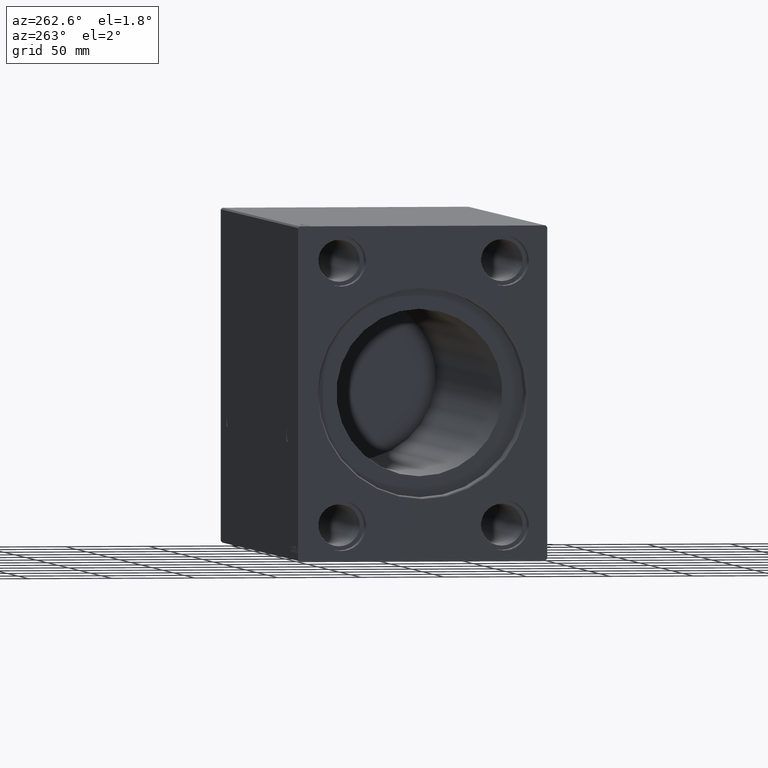
[diagram: clean part render]
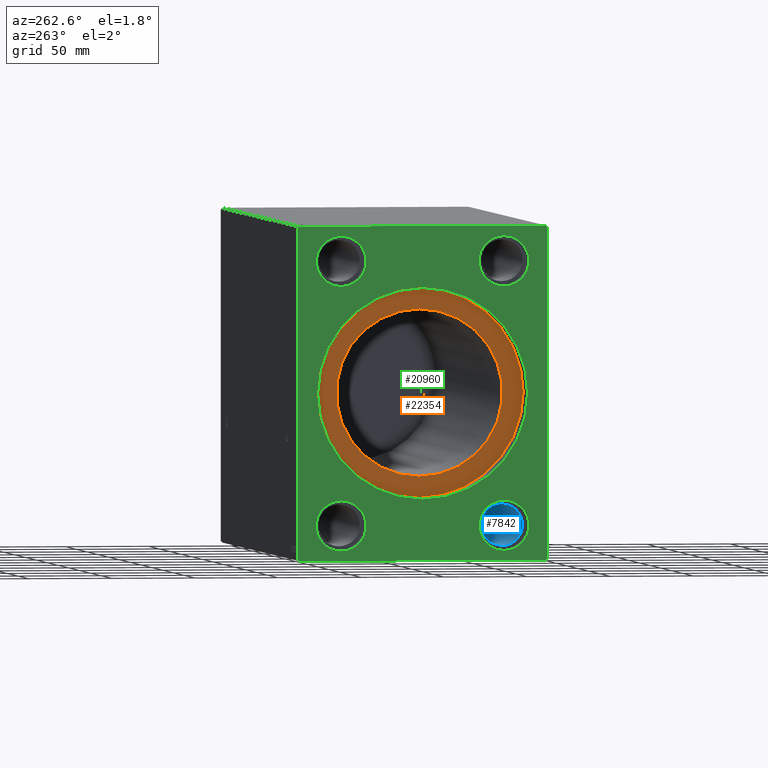
[diagram: same view with three faces highlighted in distinct colors, each labeled with its STEP entity id]
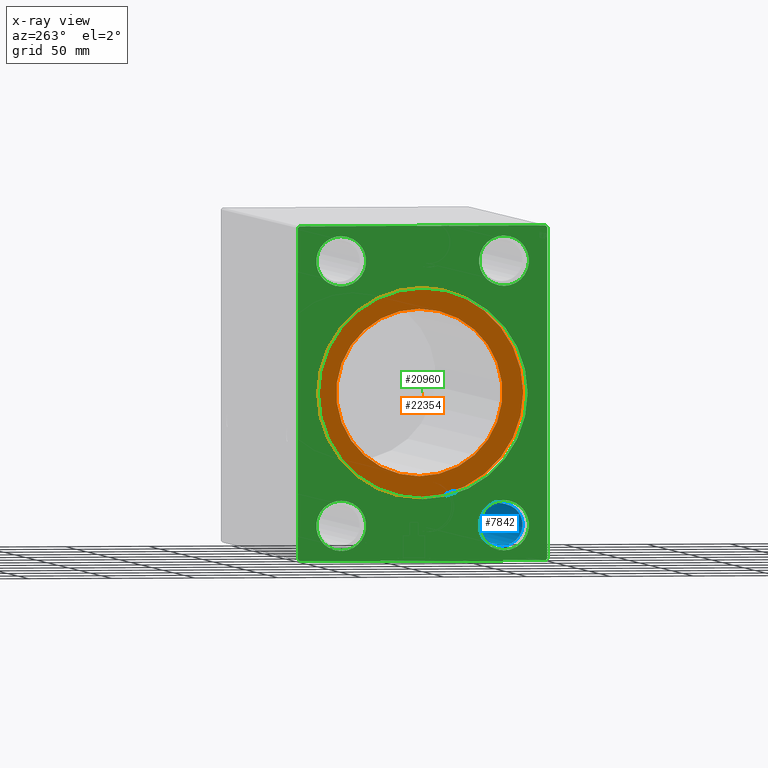
[diagram: x-ray of the same camera — body ghosted, the three highlighted faces saturated]
A machine part, auxiliary view with three faces highlighted in distinct colors.
The next image is the same camera in x-ray (body ghosted, the three faces saturated) — at least one of them is partly hidden behind the body in this view.
Their STEP definitions:

[orange] entity #22354 — the highlighted planar face has unit normal (-1, 0, 0).
#1181 = EDGE_CURVE ( 'NONE', #42337, #15818, #20971, .T. ) ;
#1199 = EDGE_CURVE ( 'NONE', #35679, #38463, #8609, .T. ) ;
#1931 = EDGE_CURVE ( 'NONE', #15818, #42337, #39493, .T. ) ;
#4825 = EDGE_LOOP ( 'NONE', ( #10502, #37688 ) ) ;
#7544 = FACE_BOUND ( 'NONE', #4825, .T. ) ;
#8385 = CIRCLE ( 'NONE', #24752, 50.00000000000000000 ) ;
#8609 = CIRCLE ( 'NONE', #31956, 50.00000000000000000 ) ;
#10474 = CARTESIAN_POINT ( 'NONE',  ( 15.00000000000000000, 7.654042494670957804E-15, -62.50000000000000000 ) ) ;
#10502 = ORIENTED_EDGE ( 'NONE', *, *, #40059, .F. ) ;
#11001 = DIRECTION ( 'NONE',  ( -1.000000000000000000, 0.000000000000000000, 0.000000000000000000 ) ) ;
#12474 = DIRECTION ( 'NONE',  ( 0.000000000000000000, 0.000000000000000000, 1.000000000000000000 ) ) ;
#13146 = CARTESIAN_POINT ( 'NONE',  ( 15.00000000000000000, 0.000000000000000000, 0.000000000000000000 ) ) ;
#14204 = DIRECTION ( 'NONE',  ( -1.000000000000000000, 0.000000000000000000, 0.000000000000000000 ) ) ;
#15818 = VERTEX_POINT ( 'NONE', #10474 ) ;
#15896 = EDGE_LOOP ( 'NONE', ( #16732, #21986 ) ) ;
#16732 = ORIENTED_EDGE ( 'NONE', *, *, #1181, .T. ) ;
#17557 = AXIS2_PLACEMENT_3D ( 'NONE', #41042, #11001, #37202 ) ;
#17656 = CARTESIAN_POINT ( 'NONE',  ( 15.00000000000001421, 0.000000000000000000, 0.000000000000000000 ) ) ;
#20457 = DIRECTION ( 'NONE',  ( 0.000000000000000000, 0.000000000000000000, 1.000000000000000000 ) ) ;
#20971 = CIRCLE ( 'NONE', #17557, 62.50000000000000000 ) ;
#21986 = ORIENTED_EDGE ( 'NONE', *, *, #1931, .T. ) ;
#22351 = AXIS2_PLACEMENT_3D ( 'NONE', #28809, #41256, #12474 ) ;
#22354 = ADVANCED_FACE ( 'NONE', ( #7544, #33750 ), #29478, .T. ) ;
#24752 = AXIS2_PLACEMENT_3D ( 'NONE', #30576, #36009, #20457 ) ;
#25451 = CARTESIAN_POINT ( 'NONE',  ( 15.00000000000001421, 6.123233995736766085E-15, -50.00000000000000000 ) ) ;
#28145 = DIRECTION ( 'NONE',  ( 0.000000000000000000, 0.000000000000000000, 1.000000000000000000 ) ) ;
#28809 = CARTESIAN_POINT ( 'NONE',  ( 15.00000000000000000, 0.000000000000000000, 0.000000000000000000 ) ) ;
#29478 = PLANE ( 'NONE',  #38457 ) ;
#30576 = CARTESIAN_POINT ( 'NONE',  ( 15.00000000000001421, 0.000000000000000000, 0.000000000000000000 ) ) ;
#30977 = DIRECTION ( 'NONE',  ( -1.000000000000000000, 0.000000000000000000, 0.000000000000000000 ) ) ;
#31956 = AXIS2_PLACEMENT_3D ( 'NONE', #17656, #30977, #37405 ) ;
#33750 = FACE_OUTER_BOUND ( 'NONE', #15896, .T. ) ;
#35679 = VERTEX_POINT ( 'NONE', #25451 ) ;
#36009 = DIRECTION ( 'NONE',  ( -1.000000000000000000, 0.000000000000000000, 0.000000000000000000 ) ) ;
#37202 = DIRECTION ( 'NONE',  ( 0.000000000000000000, 0.000000000000000000, 1.000000000000000000 ) ) ;
#37405 = DIRECTION ( 'NONE',  ( 0.000000000000000000, 0.000000000000000000, 1.000000000000000000 ) ) ;
#37688 = ORIENTED_EDGE ( 'NONE', *, *, #1199, .F. ) ;
#38457 = AXIS2_PLACEMENT_3D ( 'NONE', #13146, #14204, #28145 ) ;
#38463 = VERTEX_POINT ( 'NONE', #40432 ) ;
#39493 = CIRCLE ( 'NONE', #22351, 62.50000000000000000 ) ;
#40059 = EDGE_CURVE ( 'NONE', #38463, #35679, #8385, .T. ) ;
#40432 = CARTESIAN_POINT ( 'NONE',  ( 15.00000000000001421, 0.000000000000000000, 50.00000000000000000 ) ) ;
#41042 = CARTESIAN_POINT ( 'NONE',  ( 15.00000000000000000, 0.000000000000000000, 0.000000000000000000 ) ) ;
#41224 = CARTESIAN_POINT ( 'NONE',  ( 15.00000000000000000, 0.000000000000000000, 62.50000000000000000 ) ) ;
#41256 = DIRECTION ( 'NONE',  ( -1.000000000000000000, 0.000000000000000000, 0.000000000000000000 ) ) ;
#42337 = VERTEX_POINT ( 'NONE', #41224 ) ;

[blue] entity #7842 — the highlighted cylindrical surface (edge-blend (fillet) strip) has radius 12.5 mm, axis along (-1, -0, -0).
#103 = EDGE_CURVE ( 'NONE', #16764, #208, #17981, .T. ) ;
#208 = VERTEX_POINT ( 'NONE', #2937 ) ;
#584 = LINE ( 'NONE', #13270, #9092 ) ;
#857 = DIRECTION ( 'NONE',  ( -1.000000000000000000, 0.000000000000000000, 0.000000000000000000 ) ) ;
#1236 = AXIS2_PLACEMENT_3D ( 'NONE', #3073, #6729, #31486 ) ;
#2653 = ORIENTED_EDGE ( 'NONE', *, *, #32553, .T. ) ;
#2937 = CARTESIAN_POINT ( 'NONE',  ( 10.33000000000000540, -48.99999999999999289, -66.50000000000000000 ) ) ;
#3073 = CARTESIAN_POINT ( 'NONE',  ( 358.0000000000000000, -48.99999999999999289, -79.00000000000001421 ) ) ;
#3714 = CARTESIAN_POINT ( 'NONE',  ( 10.33000000000000540, -48.99999999999999289, -79.00000000000001421 ) ) ;
#5619 = CIRCLE ( 'NONE', #16616, 12.50000000000001066 ) ;
#6400 = CARTESIAN_POINT ( 'NONE',  ( 347.6699999999999591, -48.99999999999999289, -91.50000000000002842 ) ) ;
#6614 = DIRECTION ( 'NONE',  ( -1.000000000000000000, -0.000000000000000000, -0.000000000000000000 ) ) ;
#6729 = DIRECTION ( 'NONE',  ( -1.000000000000000000, -0.000000000000000000, -0.000000000000000000 ) ) ;
#7304 = DIRECTION ( 'NONE',  ( 0.000000000000000000, 0.000000000000000000, 1.000000000000000000 ) ) ;
#7842 = ADVANCED_FACE ( 'NONE', ( #9945 ), #36146, .F. ) ;
#9092 = VECTOR ( 'NONE', #6614, 1000.000000000000000 ) ;
#9945 = FACE_OUTER_BOUND ( 'NONE', #26505, .T. ) ;
#13270 = CARTESIAN_POINT ( 'NONE',  ( 358.0000000000000000, -48.99999999999999289, -91.50000000000002842 ) ) ;
#13773 = VECTOR ( 'NONE', #24641, 1000.000000000000000 ) ;
#14892 = CARTESIAN_POINT ( 'NONE',  ( 10.33000000000000540, -48.99999999999999289, -91.50000000000002842 ) ) ;
#16616 = AXIS2_PLACEMENT_3D ( 'NONE', #3714, #32931, #16807 ) ;
#16764 = VERTEX_POINT ( 'NONE', #29458 ) ;
#16807 = DIRECTION ( 'NONE',  ( 0.000000000000000000, 0.000000000000000000, -1.000000000000000000 ) ) ;
#16994 = VERTEX_POINT ( 'NONE', #14892 ) ;
#17981 = LINE ( 'NONE', #31507, #13773 ) ;
#21490 = EDGE_CURVE ( 'NONE', #26772, #16764, #22034, .T. ) ;
#22034 = CIRCLE ( 'NONE', #37782, 12.50000000000001066 ) ;
#22050 = ORIENTED_EDGE ( 'NONE', *, *, #21490, .F. ) ;
#24641 = DIRECTION ( 'NONE',  ( -1.000000000000000000, -0.000000000000000000, -0.000000000000000000 ) ) ;
#26505 = EDGE_LOOP ( 'NONE', ( #22050, #2653, #29479, #33313 ) ) ;
#26772 = VERTEX_POINT ( 'NONE', #6400 ) ;
#29458 = CARTESIAN_POINT ( 'NONE',  ( 347.6699999999999591, -48.99999999999999289, -66.50000000000000000 ) ) ;
#29479 = ORIENTED_EDGE ( 'NONE', *, *, #38462, .F. ) ;
#31486 = DIRECTION ( 'NONE',  ( 0.000000000000000000, 0.000000000000000000, 1.000000000000000000 ) ) ;
#31507 = CARTESIAN_POINT ( 'NONE',  ( 358.0000000000000000, -48.99999999999999289, -66.50000000000000000 ) ) ;
#32553 = EDGE_CURVE ( 'NONE', #26772, #16994, #584, .T. ) ;
#32931 = DIRECTION ( 'NONE',  ( 1.000000000000000000, -0.000000000000000000, -0.000000000000000000 ) ) ;
#33313 = ORIENTED_EDGE ( 'NONE', *, *, #103, .F. ) ;
#36146 = CYLINDRICAL_SURFACE ( 'NONE', #1236, 12.50000000000001066 ) ;
#36721 = CARTESIAN_POINT ( 'NONE',  ( 347.6699999999999591, -48.99999999999999289, -79.00000000000001421 ) ) ;
#37782 = AXIS2_PLACEMENT_3D ( 'NONE', #36721, #857, #7304 ) ;
#38462 = EDGE_CURVE ( 'NONE', #208, #16994, #5619, .T. ) ;

[green] entity #20960 — the highlighted planar face has unit normal (1, 0, 0).
#127 = CIRCLE ( 'NONE', #9025, 15.00000000000000000 ) ;
#129 = CARTESIAN_POINT ( 'NONE',  ( 0.000000000000000000, 49.00000000000000711, -79.00000000000001421 ) ) ;
#195 = AXIS2_PLACEMENT_3D ( 'NONE', #10990, #41237, #1928 ) ;
#350 = ORIENTED_EDGE ( 'NONE', *, *, #40781, .T. ) ;
#911 = CARTESIAN_POINT ( 'NONE',  ( 0.000000000000000000, 0.000000000000000000, 0.000000000000000000 ) ) ;
#1306 = CARTESIAN_POINT ( 'NONE',  ( 0.000000000000000000, 75.00000000000000000, 98.99999999999995737 ) ) ;
#1698 = DIRECTION ( 'NONE',  ( 0.000000000000000000, 0.7071067811865474617, -0.7071067811865474617 ) ) ;
#1793 = EDGE_CURVE ( 'NONE', #3103, #9205, #31184, .T. ) ;
#1928 = DIRECTION ( 'NONE',  ( 0.000000000000000000, 0.000000000000000000, -1.000000000000000000 ) ) ;
#2063 = EDGE_LOOP ( 'NONE', ( #11071, #31188, #39490, #35959, #34517, #18231, #5089, #40398 ) ) ;
#2514 = EDGE_CURVE ( 'NONE', #25213, #22795, #13441, .T. ) ;
#3103 = VERTEX_POINT ( 'NONE', #39684 ) ;
#3170 = DIRECTION ( 'NONE',  ( 0.000000000000000000, 0.000000000000000000, 1.000000000000000000 ) ) ;
#3399 = ORIENTED_EDGE ( 'NONE', *, *, #19967, .F. ) ;
#3757 = PLANE ( 'NONE',  #13093 ) ;
#3771 = CARTESIAN_POINT ( 'NONE',  ( 0.000000000000000000, -75.00000000000000000, 98.99999999999994316 ) ) ;
#3916 = DIRECTION ( 'NONE',  ( 0.000000000000000000, 0.000000000000000000, -1.000000000000000000 ) ) ;
#4112 = VERTEX_POINT ( 'NONE', #28821 ) ;
#4833 = VERTEX_POINT ( 'NONE', #38150 ) ;
#4996 = ORIENTED_EDGE ( 'NONE', *, *, #9999, .F. ) ;
#5089 = ORIENTED_EDGE ( 'NONE', *, *, #33923, .F. ) ;
#5105 = CARTESIAN_POINT ( 'NONE',  ( 0.000000000000000000, 49.00000000000000711, -64.00000000000001421 ) ) ;
#5278 = EDGE_CURVE ( 'NONE', #20306, #23687, #33963, .T. ) ;
#5736 = CARTESIAN_POINT ( 'NONE',  ( 0.000000000000000000, 49.00000000000000711, 64.00000000000001421 ) ) ;
#6179 = CARTESIAN_POINT ( 'NONE',  ( 0.000000000000000000, 49.00000000000000711, -79.00000000000001421 ) ) ;
#6323 = CIRCLE ( 'NONE', #17295, 63.20000000000003126 ) ;
#6567 = DIRECTION ( 'NONE',  ( 1.000000000000000000, -0.000000000000000000, -0.000000000000000000 ) ) ;
#6670 = LINE ( 'NONE', #7299, #30766 ) ;
#6988 = FACE_BOUND ( 'NONE', #29531, .T. ) ;
#7299 = CARTESIAN_POINT ( 'NONE',  ( 0.000000000000000000, 74.00000000000000000, 99.99999999999995737 ) ) ;
#7639 = ORIENTED_EDGE ( 'NONE', *, *, #26393, .T. ) ;
#7784 = DIRECTION ( 'NONE',  ( 0.000000000000000000, 1.000000000000000000, 0.000000000000000000 ) ) ;
#8256 = DIRECTION ( 'NONE',  ( 1.000000000000000000, -0.000000000000000000, -0.000000000000000000 ) ) ;
#8845 = CARTESIAN_POINT ( 'NONE',  ( 0.000000000000000000, 0.000000000000000000, 0.000000000000000000 ) ) ;
#8969 = EDGE_CURVE ( 'NONE', #9205, #20306, #13176, .T. ) ;
#9025 = AXIS2_PLACEMENT_3D ( 'NONE', #37092, #27230, #34091 ) ;
#9159 = VERTEX_POINT ( 'NONE', #5105 ) ;
#9205 = VERTEX_POINT ( 'NONE', #41183 ) ;
#9563 = FACE_BOUND ( 'NONE', #31462, .T. ) ;
#9782 = CARTESIAN_POINT ( 'NONE',  ( 0.000000000000000000, -48.99999999999999289, -79.00000000000001421 ) ) ;
#9840 = AXIS2_PLACEMENT_3D ( 'NONE', #24019, #39912, #20571 ) ;
#9953 = DIRECTION ( 'NONE',  ( 0.000000000000000000, -7.008983741320432232E-17, 1.000000000000000000 ) ) ;
#9999 = EDGE_CURVE ( 'NONE', #28505, #4833, #15668, .T. ) ;
#10341 = ORIENTED_EDGE ( 'NONE', *, *, #25523, .T. ) ;
#10458 = CIRCLE ( 'NONE', #195, 15.00000000000000000 ) ;
#10729 = DIRECTION ( 'NONE',  ( 0.000000000000000000, -1.000000000000000000, -9.376883653928687363E-17 ) ) ;
#10990 = CARTESIAN_POINT ( 'NONE',  ( 0.000000000000000000, 49.00000000000000711, 79.00000000000001421 ) ) ;
#11071 = ORIENTED_EDGE ( 'NONE', *, *, #5278, .F. ) ;
#12065 = EDGE_CURVE ( 'NONE', #25929, #19826, #41081, .T. ) ;
#12532 = VECTOR ( 'NONE', #7784, 1000.000000000000000 ) ;
#12574 = DIRECTION ( 'NONE',  ( 0.000000000000000000, 0.000000000000000000, -1.000000000000000000 ) ) ;
#13093 = AXIS2_PLACEMENT_3D ( 'NONE', #16852, #42006, #12574 ) ;
#13176 = LINE ( 'NONE', #39578, #23184 ) ;
#13226 = DIRECTION ( 'NONE',  ( -1.000000000000000000, 0.000000000000000000, 0.000000000000000000 ) ) ;
#13441 = LINE ( 'NONE', #3771, #21667 ) ;
#13619 = CARTESIAN_POINT ( 'NONE',  ( 0.000000000000000000, -48.99999999999999289, -94.00000000000001421 ) ) ;
#14234 = EDGE_CURVE ( 'NONE', #23687, #28133, #6670, .T. ) ;
#14364 = LINE ( 'NONE', #27473, #24913 ) ;
#15668 = CIRCLE ( 'NONE', #39668, 15.00000000000000000 ) ;
#15804 = DIRECTION ( 'NONE',  ( 0.000000000000000000, 0.000000000000000000, 1.000000000000000000 ) ) ;
#16803 = DIRECTION ( 'NONE',  ( 1.000000000000000000, 0.000000000000000000, 0.000000000000000000 ) ) ;
#16852 = CARTESIAN_POINT ( 'NONE',  ( 0.000000000000000000, 0.000000000000000000, 0.000000000000000000 ) ) ;
#17295 = AXIS2_PLACEMENT_3D ( 'NONE', #8845, #32044, #39125 ) ;
#18020 = CARTESIAN_POINT ( 'NONE',  ( 0.000000000000000000, -74.99999999999997158, -99.00000000000005684 ) ) ;
#18231 = ORIENTED_EDGE ( 'NONE', *, *, #2514, .F. ) ;
#19063 = ORIENTED_EDGE ( 'NONE', *, *, #38162, .F. ) ;
#19826 = VERTEX_POINT ( 'NONE', #20585 ) ;
#19967 = EDGE_CURVE ( 'NONE', #9159, #30672, #41197, .T. ) ;
#20063 = FACE_OUTER_BOUND ( 'NONE', #2063, .T. ) ;
#20306 = VERTEX_POINT ( 'NONE', #38270 ) ;
#20571 = DIRECTION ( 'NONE',  ( 0.000000000000000000, 0.000000000000000000, 1.000000000000000000 ) ) ;
#20585 = CARTESIAN_POINT ( 'NONE',  ( 0.000000000000000000, -48.99999999999999289, -64.00000000000001421 ) ) ;
#20663 = DIRECTION ( 'NONE',  ( 0.000000000000000000, 0.7071067811865474617, 0.7071067811865474617 ) ) ;
#20734 = ORIENTED_EDGE ( 'NONE', *, *, #12065, .T. ) ;
#20960 = ADVANCED_FACE ( 'NONE', ( #36407, #6988, #9563, #20063, #25680, #33186 ), #3757, .F. ) ;
#21074 = CARTESIAN_POINT ( 'NONE',  ( 0.000000000000000000, 74.00000000000001421, -100.0000000000000426 ) ) ;
#21319 = EDGE_CURVE ( 'NONE', #4112, #37281, #40570, .T. ) ;
#21553 = VERTEX_POINT ( 'NONE', #37148 ) ;
#21667 = VECTOR ( 'NONE', #29145, 1000.000000000000000 ) ;
#21826 = CARTESIAN_POINT ( 'NONE',  ( 0.000000000000000000, 49.00000000000000711, 94.00000000000001421 ) ) ;
#22795 = VERTEX_POINT ( 'NONE', #32807 ) ;
#23098 = DIRECTION ( 'NONE',  ( 0.000000000000000000, 0.000000000000000000, -1.000000000000000000 ) ) ;
#23137 = DIRECTION ( 'NONE',  ( -1.000000000000000000, 0.000000000000000000, 0.000000000000000000 ) ) ;
#23184 = VECTOR ( 'NONE', #9953, 1000.000000000000000 ) ;
#23268 = EDGE_LOOP ( 'NONE', ( #7639, #350 ) ) ;
#23687 = VERTEX_POINT ( 'NONE', #36869 ) ;
#24019 = CARTESIAN_POINT ( 'NONE',  ( 0.000000000000000000, -48.99999999999999289, 79.00000000000001421 ) ) ;
#24133 = AXIS2_PLACEMENT_3D ( 'NONE', #129, #13226, #15804 ) ;
#24913 = VECTOR ( 'NONE', #33690, 1000.000000000000114 ) ;
#25213 = VERTEX_POINT ( 'NONE', #40920 ) ;
#25523 = EDGE_CURVE ( 'NONE', #37281, #4112, #6323, .T. ) ;
#25680 = FACE_BOUND ( 'NONE', #41428, .T. ) ;
#25793 = VECTOR ( 'NONE', #20663, 1000.000000000000114 ) ;
#25929 = VERTEX_POINT ( 'NONE', #13619 ) ;
#26133 = AXIS2_PLACEMENT_3D ( 'NONE', #6179, #23137, #3170 ) ;
#26187 = CIRCLE ( 'NONE', #24133, 15.00000000000000000 ) ;
#26393 = EDGE_CURVE ( 'NONE', #41700, #40015, #10458, .T. ) ;
#27230 = DIRECTION ( 'NONE',  ( 1.000000000000000000, -0.000000000000000000, -0.000000000000000000 ) ) ;
#27473 = CARTESIAN_POINT ( 'NONE',  ( 0.000000000000000000, -74.00000000000000000, 99.99999999999994316 ) ) ;
#27619 = ORIENTED_EDGE ( 'NONE', *, *, #33085, .F. ) ;
#27733 = EDGE_CURVE ( 'NONE', #21553, #3103, #34397, .T. ) ;
#28133 = VERTEX_POINT ( 'NONE', #38613 ) ;
#28498 = EDGE_LOOP ( 'NONE', ( #4996, #27619 ) ) ;
#28505 = VERTEX_POINT ( 'NONE', #35136 ) ;
#28821 = CARTESIAN_POINT ( 'NONE',  ( 0.000000000000000000, 7.739767770611276825E-15, -63.20000000000003126 ) ) ;
#29002 = DIRECTION ( 'NONE',  ( -1.000000000000000000, 0.000000000000000000, 0.000000000000000000 ) ) ;
#29024 = EDGE_CURVE ( 'NONE', #22795, #21553, #34565, .T. ) ;
#29145 = DIRECTION ( 'NONE',  ( 0.000000000000000000, 1.401796748264086446E-16, -1.000000000000000000 ) ) ;
#29531 = EDGE_LOOP ( 'NONE', ( #3399, #19063 ) ) ;
#30672 = VERTEX_POINT ( 'NONE', #38108 ) ;
#30766 = VECTOR ( 'NONE', #10729, 1000.000000000000000 ) ;
#31037 = DIRECTION ( 'NONE',  ( 0.000000000000000000, 0.000000000000000000, -1.000000000000000000 ) ) ;
#31184 = LINE ( 'NONE', #21074, #25793 ) ;
#31188 = ORIENTED_EDGE ( 'NONE', *, *, #8969, .F. ) ;
#31462 = EDGE_LOOP ( 'NONE', ( #10341, #42027 ) ) ;
#32044 = DIRECTION ( 'NONE',  ( 1.000000000000000000, 0.000000000000000000, 0.000000000000000000 ) ) ;
#32316 = AXIS2_PLACEMENT_3D ( 'NONE', #911, #16803, #3916 ) ;
#32405 = AXIS2_PLACEMENT_3D ( 'NONE', #37669, #8256, #31037 ) ;
#32807 = CARTESIAN_POINT ( 'NONE',  ( 0.000000000000000000, -74.99999999999997158, -99.00000000000005684 ) ) ;
#33085 = EDGE_CURVE ( 'NONE', #4833, #28505, #37931, .T. ) ;
#33186 = FACE_BOUND ( 'NONE', #23268, .T. ) ;
#33690 = DIRECTION ( 'NONE',  ( 0.000000000000000000, -0.7071067811865474617, -0.7071067811865474617 ) ) ;
#33773 = CARTESIAN_POINT ( 'NONE',  ( 0.000000000000000000, -73.99999999999998579, -100.0000000000000426 ) ) ;
#33923 = EDGE_CURVE ( 'NONE', #28133, #25213, #14364, .T. ) ;
#33963 = LINE ( 'NONE', #1306, #38895 ) ;
#34091 = DIRECTION ( 'NONE',  ( 0.000000000000000000, 0.000000000000000000, -1.000000000000000000 ) ) ;
#34226 = AXIS2_PLACEMENT_3D ( 'NONE', #9782, #6567, #23098 ) ;
#34396 = CARTESIAN_POINT ( 'NONE',  ( 0.000000000000000000, 0.000000000000000000, 63.20000000000003126 ) ) ;
#34397 = LINE ( 'NONE', #33773, #12532 ) ;
#34517 = ORIENTED_EDGE ( 'NONE', *, *, #29024, .F. ) ;
#34565 = LINE ( 'NONE', #18020, #39237 ) ;
#35136 = CARTESIAN_POINT ( 'NONE',  ( 0.000000000000000000, -48.99999999999999289, 94.00000000000001421 ) ) ;
#35959 = ORIENTED_EDGE ( 'NONE', *, *, #27733, .F. ) ;
#36407 = FACE_BOUND ( 'NONE', #28498, .T. ) ;
#36496 = DIRECTION ( 'NONE',  ( 0.000000000000000000, 0.000000000000000000, 1.000000000000000000 ) ) ;
#36869 = CARTESIAN_POINT ( 'NONE',  ( 0.000000000000000000, 74.00000000000000000, 99.99999999999995737 ) ) ;
#37092 = CARTESIAN_POINT ( 'NONE',  ( 0.000000000000000000, -48.99999999999999289, -79.00000000000001421 ) ) ;
#37148 = CARTESIAN_POINT ( 'NONE',  ( 0.000000000000000000, -73.99999999999998579, -100.0000000000000426 ) ) ;
#37281 = VERTEX_POINT ( 'NONE', #34396 ) ;
#37669 = CARTESIAN_POINT ( 'NONE',  ( 0.000000000000000000, 49.00000000000000711, 79.00000000000001421 ) ) ;
#37931 = CIRCLE ( 'NONE', #9840, 15.00000000000000000 ) ;
#37998 = DIRECTION ( 'NONE',  ( 0.000000000000000000, -0.7071067811865474617, 0.7071067811865474617 ) ) ;
#38000 = EDGE_CURVE ( 'NONE', #19826, #25929, #127, .T. ) ;
#38108 = CARTESIAN_POINT ( 'NONE',  ( 0.000000000000000000, 49.00000000000000711, -94.00000000000001421 ) ) ;
#38150 = CARTESIAN_POINT ( 'NONE',  ( 0.000000000000000000, -48.99999999999999289, 64.00000000000001421 ) ) ;
#38162 = EDGE_CURVE ( 'NONE', #30672, #9159, #26187, .T. ) ;
#38270 = CARTESIAN_POINT ( 'NONE',  ( 0.000000000000000000, 75.00000000000000000, 98.99999999999995737 ) ) ;
#38613 = CARTESIAN_POINT ( 'NONE',  ( 0.000000000000000000, -74.00000000000000000, 99.99999999999994316 ) ) ;
#38895 = VECTOR ( 'NONE', #37998, 1000.000000000000114 ) ;
#39125 = DIRECTION ( 'NONE',  ( 0.000000000000000000, 0.000000000000000000, -1.000000000000000000 ) ) ;
#39237 = VECTOR ( 'NONE', #1698, 1000.000000000000114 ) ;
#39490 = ORIENTED_EDGE ( 'NONE', *, *, #1793, .F. ) ;
#39578 = CARTESIAN_POINT ( 'NONE',  ( 0.000000000000000000, 75.00000000000001421, -99.00000000000004263 ) ) ;
#39668 = AXIS2_PLACEMENT_3D ( 'NONE', #42100, #29002, #36496 ) ;
#39684 = CARTESIAN_POINT ( 'NONE',  ( 0.000000000000000000, 74.00000000000001421, -100.0000000000000426 ) ) ;
#39912 = DIRECTION ( 'NONE',  ( -1.000000000000000000, 0.000000000000000000, 0.000000000000000000 ) ) ;
#40015 = VERTEX_POINT ( 'NONE', #5736 ) ;
#40233 = ORIENTED_EDGE ( 'NONE', *, *, #38000, .T. ) ;
#40398 = ORIENTED_EDGE ( 'NONE', *, *, #14234, .F. ) ;
#40570 = CIRCLE ( 'NONE', #32316, 63.20000000000003126 ) ;
#40781 = EDGE_CURVE ( 'NONE', #40015, #41700, #41216, .T. ) ;
#40920 = CARTESIAN_POINT ( 'NONE',  ( 0.000000000000000000, -75.00000000000000000, 98.99999999999994316 ) ) ;
#41081 = CIRCLE ( 'NONE', #34226, 15.00000000000000000 ) ;
#41183 = CARTESIAN_POINT ( 'NONE',  ( 0.000000000000000000, 75.00000000000001421, -99.00000000000004263 ) ) ;
#41197 = CIRCLE ( 'NONE', #26133, 15.00000000000000000 ) ;
#41216 = CIRCLE ( 'NONE', #32405, 15.00000000000000000 ) ;
#41237 = DIRECTION ( 'NONE',  ( 1.000000000000000000, -0.000000000000000000, -0.000000000000000000 ) ) ;
#41428 = EDGE_LOOP ( 'NONE', ( #40233, #20734 ) ) ;
#41700 = VERTEX_POINT ( 'NONE', #21826 ) ;
#42006 = DIRECTION ( 'NONE',  ( 1.000000000000000000, 0.000000000000000000, 0.000000000000000000 ) ) ;
#42027 = ORIENTED_EDGE ( 'NONE', *, *, #21319, .T. ) ;
#42100 = CARTESIAN_POINT ( 'NONE',  ( 0.000000000000000000, -48.99999999999999289, 79.00000000000001421 ) ) ;